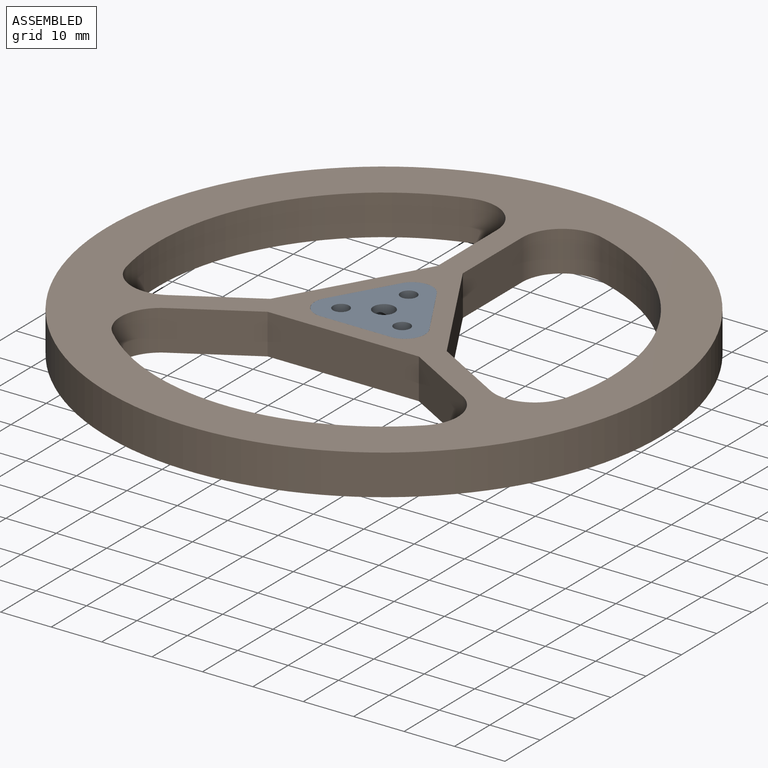
[diagram: assembled view]
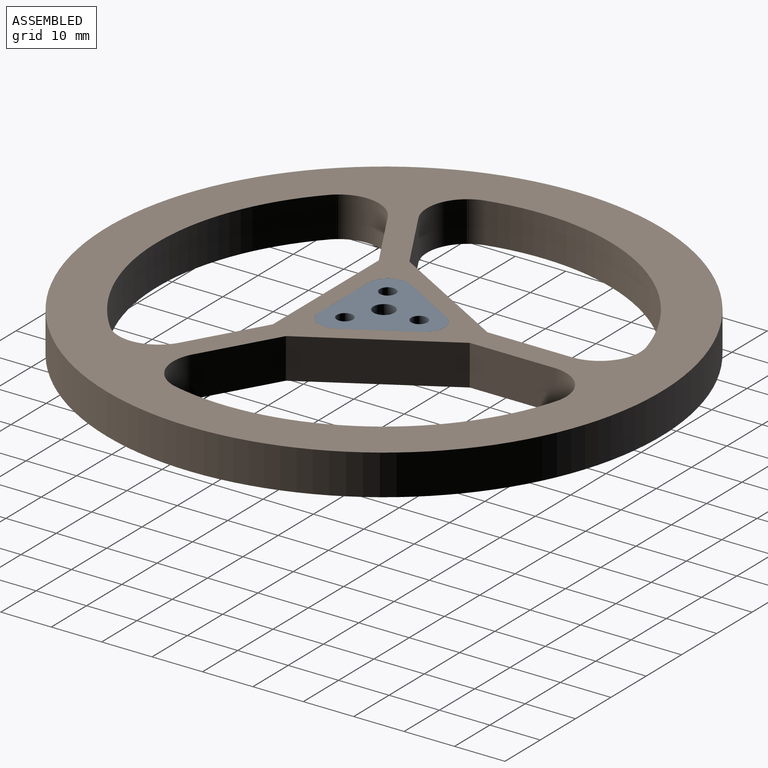
[diagram: assembled view, second angle]
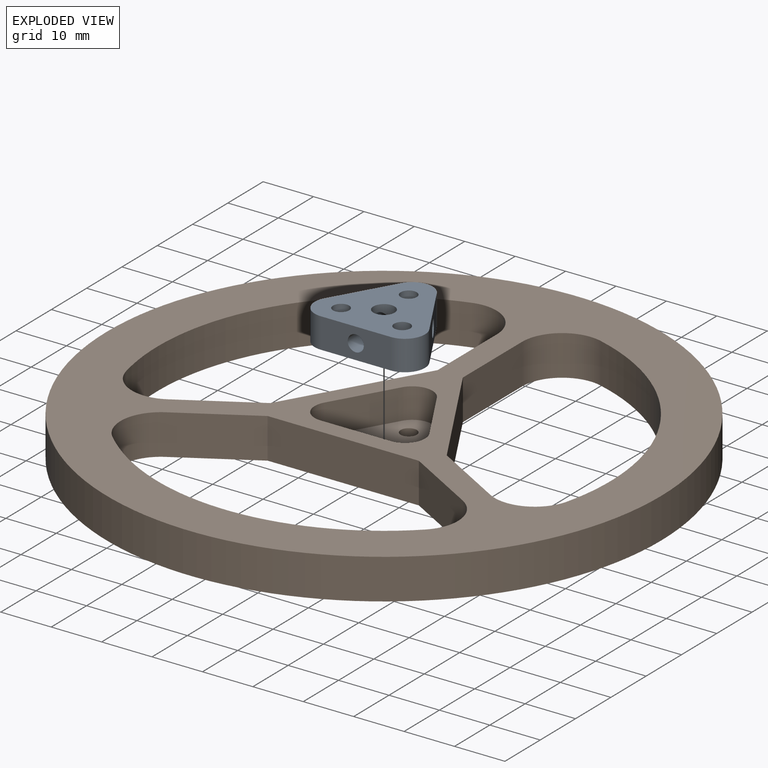
[diagram: exploded view]
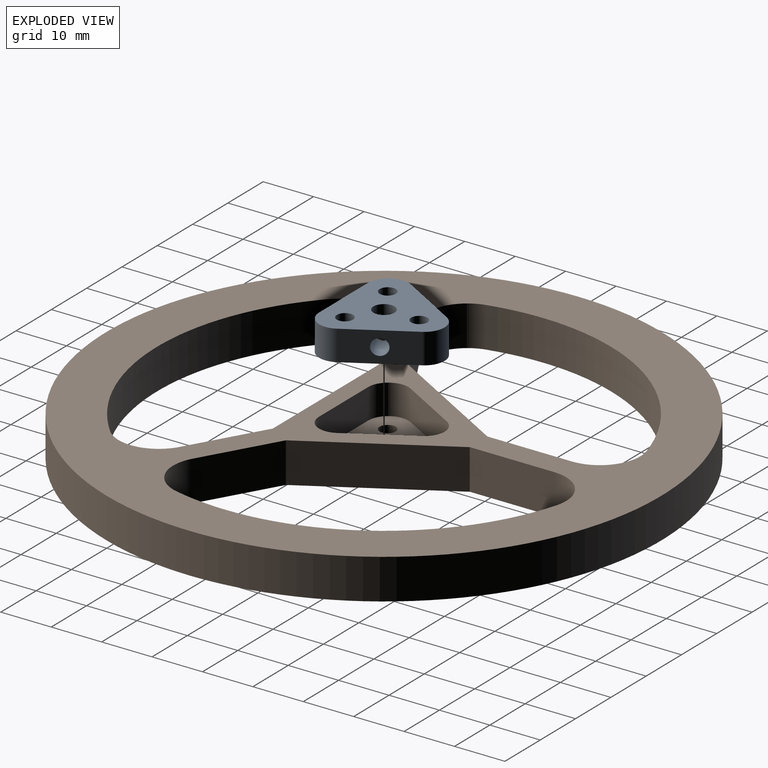
[diagram: exploded view, second angle]
FCSTD DOCUMENT  (FreeCAD 1.0R39109 (Git))
Label: flywheel
License: All rights reserved
LicenseURL: https://en.wikipedia.org/wiki/All_rights_reserved
objects: Sketcher::SketchObject×12, PartDesign::Pocket×9, PartDesign::Pad×2, PartDesign::PolarPattern×2, PartDesign::Fillet×2, PartDesign::Body×2, App::Link×2, App::FeaturePython×2, Assembly::JointGroup×1, Assembly::AssemblyObject×1
note: 69 computed .brp shape members not serialized (recipe doc carries the construction recipe); baked Part::Feature solids carry a one-line shape summary decoded from their .brp

FEATURE [Sketcher::SketchObject] Sketch
  ArcFitTolerance = 1e-06
  AttachmentSupport = -> [XY_Plane]
  FullyConstrained = true
  MakeInternals = false
  MapMode = 5
  sketch-geometry (16):
    g0: Circle CenterX=0 CenterY=0 CenterZ=0 NormalX=0 NormalY=0 NormalZ=1 AngleXU=0 Radius=55
    g1: ArcOfCircle CenterX=0 CenterY=0 CenterZ=0 NormalX=0 NormalY=0 NormalZ=1 AngleXU=0 Radius=45 StartAngle=1.62638 EndAngle=3.60961
    g2: LineSegment StartX=-2.5 StartY=18.7639 StartZ=0 EndX=-2.5 EndY=44.9305 EndZ=0
    g3: LineSegment StartX=2.5 StartY=18.7639 StartZ=0 EndX=2.5 EndY=44.9305 EndZ=0
    g4: LineSegment StartX=-17.5 StartY=-7.21688 StartZ=0 EndX=-40.161 EndY=-20.3002 EndZ=0
    g5: LineSegment StartX=-15 StartY=-11.547 StartZ=0 EndX=-37.661 EndY=-24.6303 EndZ=0
    g6: LineSegment StartX=15 StartY=-11.547 StartZ=0 EndX=37.661 EndY=-24.6303 EndZ=0
    g7: LineSegment StartX=17.5 StartY=-7.21688 StartZ=0 EndX=40.161 EndY=-20.3002 EndZ=0
    g8: LineSegment [constr] StartX=-40.161 StartY=-20.3002 StartZ=0 EndX=-2.5 EndY=44.9305 EndZ=0
    g9: LineSegment [constr] StartX=-37.661 StartY=-24.6303 StartZ=0 EndX=37.661 EndY=-24.6303 EndZ=0
    g10: LineSegment [constr] StartX=40.161 StartY=-20.3002 StartZ=0 EndX=2.5 EndY=44.9305 EndZ=0
    g11: ArcOfCircle CenterX=0 CenterY=0 CenterZ=0 NormalX=0 NormalY=0 NormalZ=1 AngleXU=0 Radius=45 StartAngle=3.72078 EndAngle=5.704
    g12: ArcOfCircle CenterX=0 CenterY=0 CenterZ=0 NormalX=0 NormalY=0 NormalZ=1 AngleXU=0 Radius=45 StartAngle=5.81517 EndAngle=7.7984
    g13: LineSegment StartX=-15 StartY=-11.547 StartZ=0 EndX=15 EndY=-11.547 EndZ=0
    g14: LineSegment StartX=17.5 StartY=-7.21688 StartZ=0 EndX=2.5 EndY=18.7639 EndZ=0
    g15: LineSegment StartX=-2.5 StartY=18.7639 StartZ=0 EndX=-17.5 EndY=-7.21688 EndZ=0
  constraints (46):
    c: Diameter(g0) = 110
    c: Diameter(g1) = 90
    c: Coincident(g0,g-1)
    c: Coincident(g1,g0)
    c: PointOnObject(g7,g12)
    c: PointOnObject(g5,g11)
    c: Coincident(g8,g2)
    c: Coincident(g4,g8)
    c: Coincident(g9,g5)
    c: Coincident(g9,g6)
    c: Coincident(g7,g10)
    c: Coincident(g10,g3)
    c: Equal(g8,g9)
    c: Equal(g9,g10)
    c: Coincident(g12,g3)
    c: Coincident(g1,g2)
    c: Equal(g1,g11)
    c: Coincident(g1,g4)
    c: PointOnObject(g11,g9)
    c: Coincident(g1,g11)
    c: Equal(g11,g12)
    c: Coincident(g11,g6)
    c: PointOnObject(g12,g7)
    c: Coincident(g11,g12)
    c: Horizontal(g13)
    c: Coincident(g7,g14)
    c: Coincident(g6,g13)
    c: Coincident(g5,g13)
    c: Coincident(g4,g15)
    c: Coincident(g2,g15) = 4.71239
    c: Coincident(g3,g14)
    c: Parallel(g2,g3)
    c: Parallel(g7,g6)
    c: Parallel(g4,g5)
    c: Distance(g15,g15) = 30
    c: Equal(g15,g14)
    c: Equal(g15,g13)
    c: Distance(g2,g3) = 5
    c: Distance(g6,g7) = 5
    c: Distance(g4,g5) = 5
    c: Horizontal(g2,g3)
    c: Equal(g3,g7)
    c: Equal(g2,g4)
    c: Equal(g5,g4)
    c: Equal(g6,g7)
    c: Horizontal(g1,g3)
FEATURE [PartDesign::Pad] Pad
  Direction = (0,0,1)
  Length = 8
  Length2 = 10
  Profile = -> Sketch
  ReferenceAxis = -> Sketch [N_Axis]
  Refine = true
  Suppressed = false
  Type = 0
FEATURE [Sketcher::SketchObject] Sketch001
  ArcFitTolerance = 1e-06
  AttachmentSupport = -> [Pad]
  FullyConstrained = true
  MakeInternals = false
  MapMode = 5
  Placement = pos=(0,0,8) rot=(0,0,1;0rad)
  sketch-geometry (8):
    g0: LineSegment StartX=10.4079 StartY=-2.00899 StartZ=0 EndX=3.4641 EndY=10.018 EndZ=0
    g1: LineSegment StartX=-3.4641 StartY=10.018 StartZ=0 EndX=-10.4079 EndY=-2.00899 EndZ=0
    g2: LineSegment StartX=-6.94378 StartY=-8.00899 StartZ=0 EndX=6.94378 EndY=-8.00899 EndZ=0
    g3: Circle [constr] CenterX=0 CenterY=0 CenterZ=0 NormalX=0 NormalY=0 NormalZ=1 AngleXU=0 Radius=21
    g4: ArcOfCircle CenterX=6.94378 CenterY=-4.00899 CenterZ=0 NormalX=0 NormalY=0 NormalZ=1 AngleXU=0 Radius=4 StartAngle=4.71239 EndAngle=6.80678
    g5: ArcOfCircle CenterX=0 CenterY=8.01798 CenterZ=0 NormalX=0 NormalY=0 NormalZ=1 AngleXU=0 Radius=4 StartAngle=0.523599 EndAngle=2.61799
    g6: ArcOfCircle CenterX=-6.94378 CenterY=-4.00899 CenterZ=0 NormalX=0 NormalY=0 NormalZ=1 AngleXU=0 Radius=4 StartAngle=2.61799 EndAngle=4.71239
    g7: Circle [constr] CenterX=0 CenterY=0 CenterZ=0 NormalX=0 NormalY=0 NormalZ=1 AngleXU=0 Radius=10.6
  constraints (19):
    c: Radius(g3) = 21
    c: Coincident(g3,g-1)
    c: Tangent(g0,g4) = -1.5708
    c: Tangent(g2,g4) = -1.5708
    c: Radius(g4) = 4
    c: Tangent(g0,g5) = -1.5708
    c: Tangent(g1,g5) = -1.5708
    c: Tangent(g2,g6) = -1.5708
    c: Tangent(g1,g6) = -1.5708
    c: Coincident(g7,g3)
    c: PointOnObject(g0,g7)
    c: PointOnObject(g2,g7)
    c: PointOnObject(g2,g7)
    c: PointOnObject(g1,g7)
    c: PointOnObject(g0,g7)
    c: Equal(g5,g4)
    c: PointOnObject(g5,g-2)
    c: Equal(g5,g6)
    c: Diameter(g7) = 21.2
FEATURE [PartDesign::Pocket] Pocket
  BaseFeature = -> Pad
  Direction = (0,0,-1)
  Length = 6
  Length2 = 5
  Profile = -> Sketch001
  ReferenceAxis = -> Sketch001 [N_Axis]
  Refine = true
  Suppressed = false
  Type = 0
FEATURE [Sketcher::SketchObject] Sketch002
  ArcFitTolerance = 1e-06
  AttachmentSupport = -> [Pocket]
  FullyConstrained = true
  MakeInternals = false
  MapMode = 5
  Placement = pos=(0,0,2) rot=(0,0,1;0rad)
  sketch-geometry (3):
    g0: Circle CenterX=0 CenterY=0 CenterZ=0 NormalX=0 NormalY=0 NormalZ=1 AngleXU=0 Radius=2.05
    g1: Circle [constr] CenterX=0 CenterY=0 CenterZ=0 NormalX=0 NormalY=0 NormalZ=1 AngleXU=0 Radius=7
    g2: Circle CenterX=0 CenterY=7 CenterZ=0 NormalX=0 NormalY=0 NormalZ=1 AngleXU=0 Radius=1.6
  constraints (7):
    c: Coincident(g0,g-1)
    c: Diameter(g0) = 4.1
    c: Diameter(g1) = 14
    c: Coincident(g1,g0)
    c: Diameter(g2) = 3.2
    c: PointOnObject(g2,g1)
    c: PointOnObject(g2,g-2)
FEATURE [PartDesign::Pocket] Pocket001
  BaseFeature = -> Pocket
  Direction = (0,0,-1)
  Length = 5
  Length2 = 5
  Profile = -> Sketch002 [Edge2]
  ReferenceAxis = -> Sketch002 [N_Axis]
  Refine = true
  Suppressed = false
  Type = 0
FEATURE [PartDesign::PolarPattern] PolarPattern
  Angle = 360
  Axis = -> Sketch002 [N_Axis]
  BaseFeature = -> Pocket001
  Mode = 0
  Occurrences = 3
  Offset = 120
  Originals = -> [Pocket001]
  Refine = true
  Suppressed = false
  TransformMode = 0
FEATURE [Sketcher::SketchObject] Sketch003
  ArcFitTolerance = 1e-06
  AttachmentSupport = -> [PolarPattern]
  FullyConstrained = true
  MakeInternals = false
  MapMode = 5
  Placement = pos=(0,0,2) rot=(0,0,1;0rad)
  sketch-geometry (1):
    g0: Circle CenterX=0 CenterY=0 CenterZ=0 NormalX=0 NormalY=0 NormalZ=1 AngleXU=0 Radius=1.6
  constraints (2):
    c: Diameter(g0) = 3.2
    c: Coincident(g0,g-1)
FEATURE [PartDesign::Pocket] Pocket002
  BaseFeature = -> PolarPattern
  Direction = (0,0,-1)
  Length = 5
  Length2 = 5
  Profile = -> Sketch003 [Edge1]
  ReferenceAxis = -> Sketch003 [N_Axis]
  Refine = true
  Suppressed = false
  Type = 0
FEATURE [PartDesign::Fillet] Fillet
  Base = -> Pocket002 [Edge47,Edge39,Edge41,Edge56,Edge57,Edge46]
  BaseFeature = -> Pocket002
  Radius = 8
  Refine = true
  SupportTransform = false
  Suppressed = false
  UseAllEdges = false
FEATURE [PartDesign::Body] Body
  AllowCompound = false
  Group = -> [Sketch,Pad,Sketch001,Pocket,Sketch002,Pocket001,PolarPattern,Sketch003,Pocket002,Fillet]
  Origin = -> Origin
  Tip = -> Fillet
FEATURE [Sketcher::SketchObject] Sketch004
  ArcFitTolerance = 1e-06
  FullyConstrained = true
  MakeInternals = false
  MapMode = 5
  Placement = pos=(0,0,-5) rot=(1,0,0;3.14159rad)
  sketch-geometry (1):
    g0: Circle CenterX=0 CenterY=0 CenterZ=0 NormalX=0 NormalY=0 NormalZ=1 AngleXU=0 Radius=2.1
  constraints (2):
    c: Diameter(g0) = 4.2
    c: Coincident(g0,g-1)
FEATURE [Sketcher::SketchObject] Sketch005
  ArcFitTolerance = 1e-06
  AttachmentSupport = -> [XY_Plane001]
  FullyConstrained = true
  MakeInternals = false
  MapMode = 5
  sketch-geometry (4):
    g0: LineSegment StartX=0 StartY=16 StartZ=0 EndX=-13.8564 EndY=-8 EndZ=0
    g1: LineSegment StartX=-13.8564 StartY=-8 StartZ=0 EndX=13.8564 EndY=-8 EndZ=0
    g2: LineSegment StartX=13.8564 StartY=-8 StartZ=0 EndX=0 EndY=16 EndZ=0
    g3: Circle [constr] CenterX=0 CenterY=0 CenterZ=0 NormalX=0 NormalY=0 NormalZ=1 AngleXU=0 Radius=16
  constraints (11):
    c: Coincident(g0,g1)
    c: Coincident(g1,g2)
    c: Coincident(g2,g0)
    c: Equal(g0,g1)
    c: Equal(g0,g2)
    c: PointOnObject(g0,g3)
    c: PointOnObject(g1,g3)
    c: PointOnObject(g2,g3)
    c: Radius(g3) = 16
    c: Coincident(g3,g-1)
    c: PointOnObject(g2,g-2)
FEATURE [PartDesign::Pad] Pad001
  Direction = (0,0,1)
  Length = 6
  Length2 = 10
  Profile = -> Sketch005
  ReferenceAxis = -> Sketch005 [N_Axis]
  Refine = true
  Suppressed = false
  Type = 0
FEATURE [PartDesign::Fillet] Fillet001
  Base = -> Pad001 [Edge1,Edge5,Edge2]
  BaseFeature = -> Pad001
  Radius = 4
  Refine = true
  SupportTransform = false
  Suppressed = false
  UseAllEdges = false
FEATURE [Sketcher::SketchObject] Sketch006
  ArcFitTolerance = 1e-06
  AttachmentSupport = -> [Fillet001]
  FullyConstrained = false
  MakeInternals = false
  MapMode = 5
  Placement = pos=(0,0,0) rot=(1,0,0;3.14159rad)
  sketch-geometry (2):
    g0: Circle CenterX=0 CenterY=0 CenterZ=0 NormalX=0 NormalY=0 NormalZ=1 AngleXU=0 Radius=7
    g1: Circle CenterX=8.70117e-07 CenterY=-7 CenterZ=0 NormalX=0 NormalY=0 NormalZ=1 AngleXU=0 Radius=1.6
  constraints (4):
    c: Diameter(g0) = 14
    c: Coincident(g0,g-1)
    c: Diameter(g1) = 3.2
    c: PointOnObject(g1,g0)
FEATURE [PartDesign::Pocket] Pocket003
  BaseFeature = -> Fillet001
  Direction = (0,0,1)
  Length = 10
  Length2 = 5
  Profile = -> Sketch006 [Edge2]
  ReferenceAxis = -> Sketch006 [N_Axis]
  Refine = true
  Suppressed = false
  Type = 0
FEATURE [PartDesign::PolarPattern] PolarPattern001
  Angle = 360
  Axis = -> Sketch006 [N_Axis]
  BaseFeature = -> Pocket003
  Mode = 0
  Occurrences = 3
  Offset = 120
  Originals = -> [Pocket003]
  Refine = true
  Suppressed = false
  TransformMode = 0
FEATURE [PartDesign::Pocket] Pocket004
  BaseFeature = -> PolarPattern001
  Direction = (0,1e-16,1)
  Length = 10
  Length2 = 5
  Profile = -> Sketch004 [Edge1]
  ReferenceAxis = -> Sketch004 [N_Axis]
  Refine = true
  Suppressed = false
  Type = 0
FEATURE [Sketcher::SketchObject] Sketch007
  ArcFitTolerance = 1e-06
  AttachmentSupport = -> [Pocket004]
  ExternalGeometry = -> [Pocket004]
  FullyConstrained = true
  MakeInternals = false
  MapMode = 5
  Placement = pos=(-6.9282,4,0) rot=(-0.377964,0.654654,0.654654;3.86433rad)
  sketch-geometry (3):
    g0: Circle CenterX=0 CenterY=3 CenterZ=0 NormalX=0 NormalY=0 NormalZ=1 AngleXU=0 Radius=1.6
    g1: LineSegment [constr] StartX=-2.2e-15 StartY=6 StartZ=0 EndX=-2e-15 EndY=4.6 EndZ=0
    g2: LineSegment [constr] StartX=0 StartY=0 StartZ=0 EndX=0 EndY=1.4 EndZ=0
  constraints (9):
    c: Diameter(g0) = 3.2
    c: PointOnObject(g0,g-2)
    c: Symmetric(g-5,g-5,g1)
    c: PointOnObject(g1,g0)
    c: Perpendicular(g-5,g1)
    c: Coincident(g2,g-1)
    c: PointOnObject(g2,g0)
    c: Vertical(g2)
    c: Equal(g1,g2)
FEATURE [PartDesign::Pocket] Pocket005
  BaseFeature = -> Pocket004
  Direction = (0.866025,-0.5,1e-16)
  Length = 10
  Length2 = 5
  Profile = -> Sketch007 [Edge1]
  ReferenceAxis = -> Sketch007 [N_Axis]
  Refine = true
  Suppressed = false
  Type = 0
FEATURE [Sketcher::SketchObject] Sketch008
  ArcFitTolerance = 1e-06
  AttachmentSupport = -> [Pocket005]
  ExternalGeometry = -> [Pocket005]
  FullyConstrained = true
  MakeInternals = false
  MapMode = 5
  Placement = pos=(6.9282,4,0) rot=(0.377964,0.654654,0.654654;2.41886rad)
  sketch-geometry (3):
    g0: Circle CenterX=0 CenterY=3 CenterZ=0 NormalX=0 NormalY=0 NormalZ=1 AngleXU=0 Radius=1.6
    g1: LineSegment [constr] StartX=-2e-15 StartY=6 StartZ=0 EndX=-2e-15 EndY=4.6 EndZ=0
    g2: LineSegment [constr] StartX=0 StartY=0 StartZ=0 EndX=0 EndY=1.4 EndZ=0
  constraints (9):
    c: Diameter(g0) = 3.2
    c: PointOnObject(g0,g-2)
    c: Symmetric(g-3,g-3,g1)
    c: PointOnObject(g1,g0)
    c: Vertical(g1)
    c: Coincident(g2,g-1)
    c: PointOnObject(g2,g0)
    c: Vertical(g2)
    c: Equal(g1,g2)
FEATURE [PartDesign::Pocket] Pocket006
  BaseFeature = -> Pocket005
  Direction = (-0.866025,-0.5,-1e-16)
  Length = 10
  Length2 = 5
  Profile = -> Sketch008 [Edge1]
  ReferenceAxis = -> Sketch008 [N_Axis]
  Refine = true
  Suppressed = false
  Type = 0
FEATURE [Sketcher::SketchObject] Sketch009
  ArcFitTolerance = 1e-06
  AttachmentSupport = -> [Pocket006]
  ExternalGeometry = -> [Pocket006]
  FullyConstrained = true
  MakeInternals = false
  MapMode = 5
  Placement = pos=(0,-8,0) rot=(1,0,0;1.5708rad)
  sketch-geometry (3):
    g0: Circle CenterX=0 CenterY=3 CenterZ=0 NormalX=0 NormalY=0 NormalZ=1 AngleXU=0 Radius=1.6
    g1: LineSegment [constr] StartX=0 StartY=0 StartZ=0 EndX=0 EndY=1.4 EndZ=0
    g2: LineSegment [constr] StartX=3.9e-15 StartY=4.6 StartZ=0 EndX=3.9e-15 EndY=6 EndZ=0
  constraints (9):
    c: Diameter(g0) = 3.2
    c: PointOnObject(g0,g-2)
    c: Coincident(g1,g-1)
    c: PointOnObject(g1,g0)
    c: Vertical(g1)
    c: PointOnObject(g2,g0)
    c: Symmetric(g-3,g-3,g2)
    c: Vertical(g2)
    c: Equal(g2,g1)
FEATURE [PartDesign::Pocket] Pocket007
  BaseFeature = -> Pocket006
  Direction = (0,1,-2e-16)
  Length = 10
  Length2 = 5
  Profile = -> Sketch009 [Edge1]
  ReferenceAxis = -> Sketch009 [N_Axis]
  Refine = true
  Suppressed = false
  Type = 0
FEATURE [Sketcher::SketchObject] Sketch010
  ArcFitTolerance = 1e-06
  AttachmentSupport = -> [Pocket007]
  ExternalGeometry = -> [Pocket007]
  FullyConstrained = false
  MakeInternals = false
  MapMode = 5
  Placement = pos=(0,0,5) rot=(1,0,0;3.14159rad)
  sketch-geometry (1):
    g0: Circle CenterX=0 CenterY=0 CenterZ=0 NormalX=0 NormalY=0 NormalZ=1 AngleXU=0 Radius=2.1
  constraints (1):
    c: Coincident(g0,g-1)
FEATURE [PartDesign::Pocket] Pocket008
  BaseFeature = -> Pocket007
  Direction = (0,0,1)
  Length = 5
  Length2 = 5
  Profile = -> Sketch010
  ReferenceAxis = -> Sketch010 [N_Axis]
  Refine = true
  Suppressed = false
  Type = 0
FEATURE [Sketcher::SketchObject] Sketch011
  ArcFitTolerance = 1e-06
  AttachmentSupport = -> [PolarPattern001]
  FullyConstrained = true
  MakeInternals = false
  MapMode = 5
  Placement = pos=(0,0,0) rot=(1,0,0;3.14159rad)
  sketch-geometry (1):
    g0: Circle CenterX=0 CenterY=0 CenterZ=0 NormalX=0 NormalY=0 NormalZ=1 AngleXU=0 Radius=6
  constraints (2):
    c: Diameter(g0) = 12
    c: Coincident(g0,g-1)
FEATURE [PartDesign::Body] Body001
  AllowCompound = false
  Group = -> [Sketch005,Pad001,Fillet001,Sketch006,Pocket003,PolarPattern001,Sketch011,Sketch004,Pocket004,Sketch007,Pocket005,Sketch008,Pocket006,Sketch009,Pocket007,Sketch010,Pocket008]
  Origin = -> Origin001
  Placement = pos=(0,0,2) rot=(0,0,1;0rad)
  Tip = -> Pocket008
FEATURE [App::Link] Body002
  LinkedObject = -> Body001
FEATURE [App::FeaturePython] GroundedJoint  # Assembly grounded joint (typed FeaturePython)
  ObjectToGround = -> Body002
FEATURE [App::FeaturePython] Joint  label="Fixed"  # Assembly joint (typed FeaturePython)
  Activated = true
  AngleMax = 0
  AngleMin = 0
  Detach1 = false
  Detach2 = false
  Distance = 0
  Distance2 = 0
  EnableAngleMax = false
  EnableAngleMin = false
  EnableLengthMax = false
  EnableLengthMin = false
  JointType = 0 (Fixed)
  LengthMax = 0
  LengthMin = 0
  Placement1 = pos=(6.06218,-3.5,0) rot=(-0.5,0.866025,0;3.14159rad)
  Placement2 = pos=(6.06218,-3.5,2) rot=(0,0,-1;2.0944rad)
  Reference1 = -> Assembly [Body002.Edge12,Body002.Edge12]
  Reference2 = -> Assembly [Body003.Edge40,Body003.Edge40]
FEATURE [Assembly::JointGroup] Joints
  Group = -> [GroundedJoint,Joint]
FEATURE [App::Link] Body003
  LinkPlacement = pos=(-4.35059e-07,-7.53544e-07,-2) rot=(0,0,1;0rad)
  LinkedObject = -> Body
  Placement = pos=(-4.35059e-07,-7.53544e-07,-2) rot=(0,0,1;0rad)
FEATURE [Assembly::AssemblyObject] Assembly  label="flywheel"
  Group = -> [Joints,Body002,GroundedJoint,Body003,Joint]
  Origin = -> Origin002
  Placement = pos=(0,122,0) rot=(0,0,1;0rad)
  Type = Assembly
